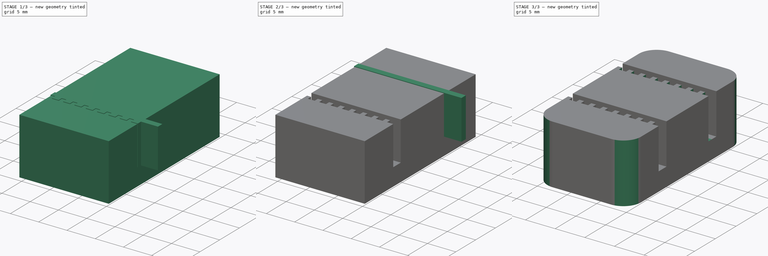
[diagram: build sequence overview — one tinted view per stage of 3, left to right]
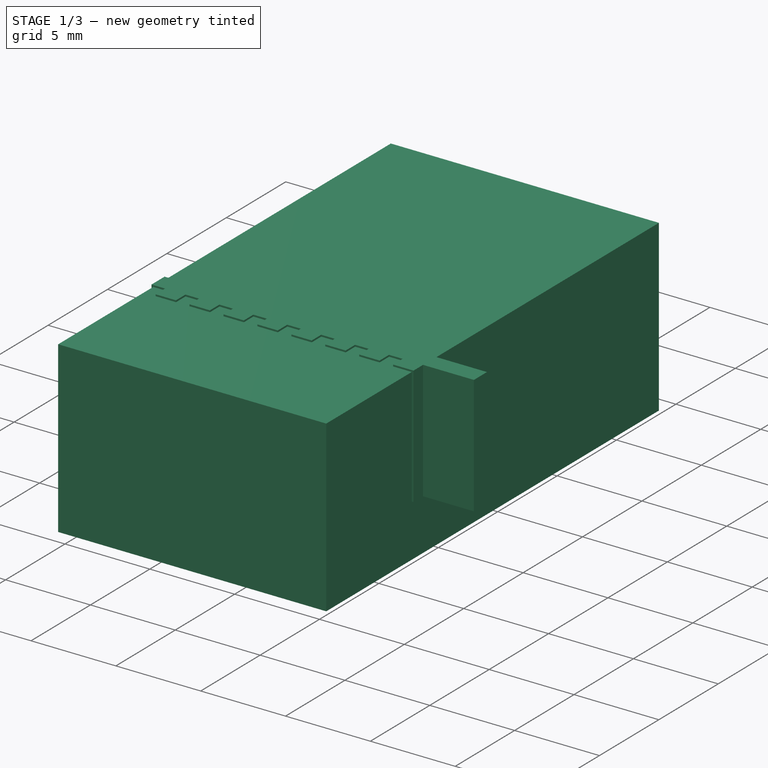
[diagram: stage 1 of 3 — iso view after this stage's code; geometry added in this stage tinted green]
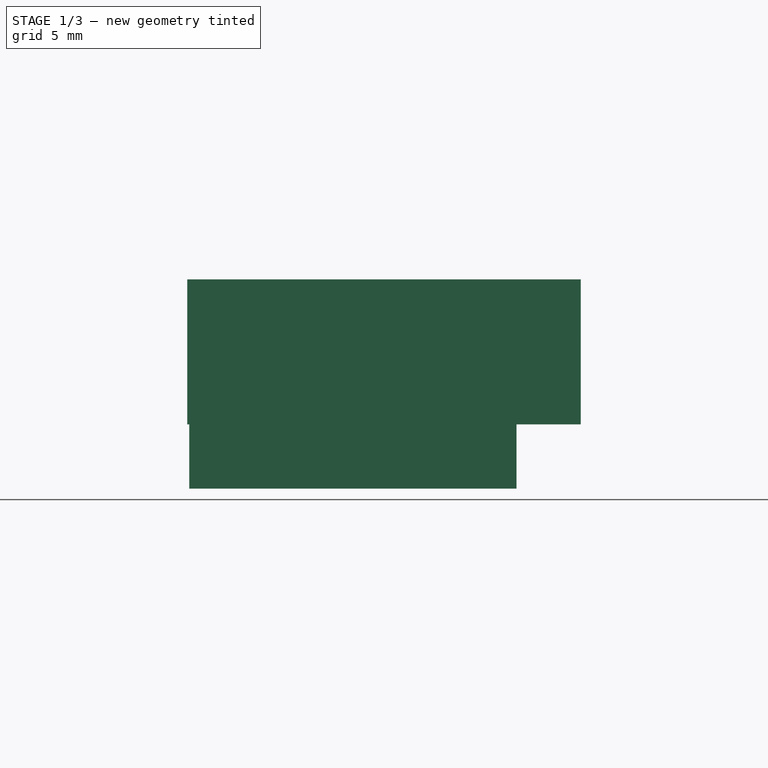
[diagram: stage 1 of 3 — front view after this stage's code; geometry added in this stage tinted green]
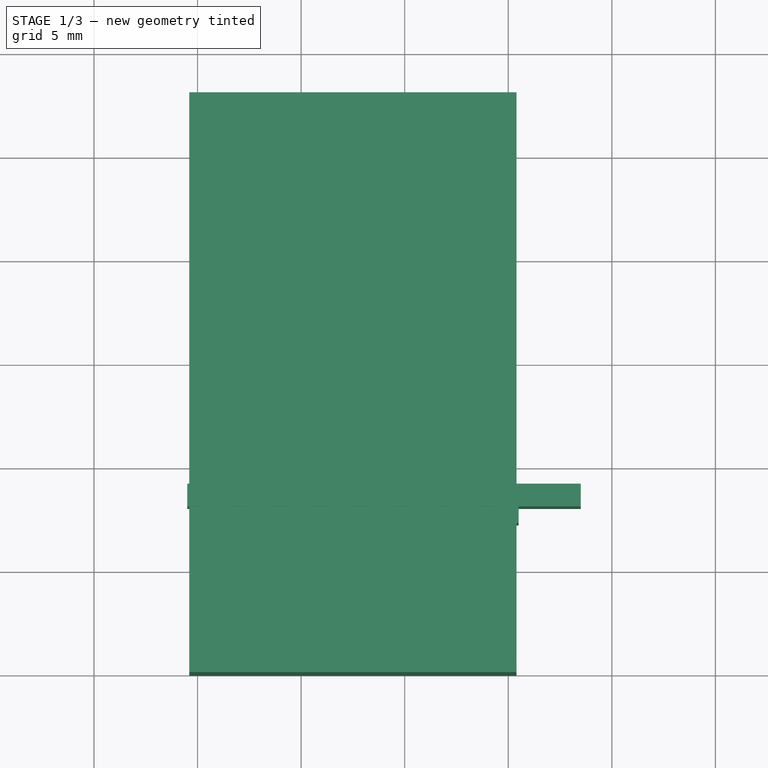
[diagram: stage 1 of 3 — top view after this stage's code; geometry added in this stage tinted green]
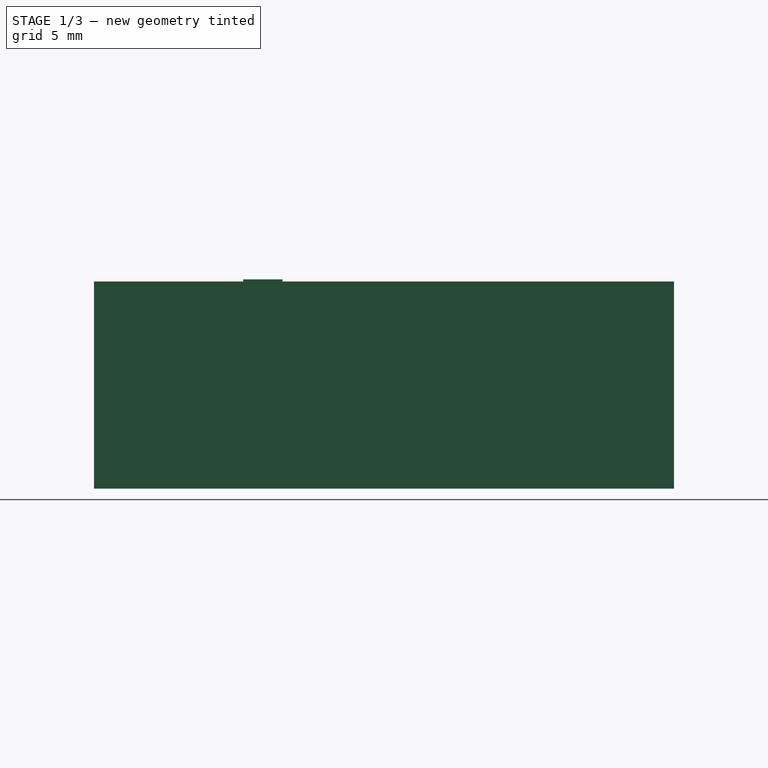
[diagram: stage 1 of 3 — right view after this stage's code; geometry added in this stage tinted green]
FCSTD DOCUMENT  (FreeCAD 0.16R6706 (Git))
Label: belt-blocks
License: All rights reserved
LicenseURL: http://en.wikipedia.org/wiki/All_rights_reserved
objects: Part::Box×3, Sketcher::SketchObject×2, PartDesign::Pad×2, Part::Cut×2, Part::Fillet×1
note: 12 computed .brp shape members not serialized (recipe doc carries the construction recipe); baked Part::Feature solids carry a one-line shape summary decoded from their .brp

FEATURE [Part::Box] Box001  label="Cube001"
  Height = 10
  Length = 15.8
  Placement = pos=(-0.4,0,0) rot=(0,0,1;0rad)
  Width = 28
FEATURE [Sketcher::SketchObject] Sketch015
  Placement = pos=(-0.5,20,3.1) rot=(1,0,0;1.5708rad)
  Support = -> Box [Face3]
  sketch-geometry (32):
    g0: LineSegment StartX=0.8 StartY=7 StartZ=0 EndX=2 EndY=7 EndZ=0
    g1: LineSegment StartX=2 StartY=7 StartZ=0 EndX=2 EndY=0 EndZ=0
    g2: LineSegment StartX=2 StartY=0 StartZ=0 EndX=0.8 EndY=0 EndZ=0
    g3: LineSegment StartX=0.8 StartY=0 StartZ=0 EndX=0.8 EndY=7 EndZ=0
    g4: LineSegment StartX=2.8 StartY=7 StartZ=0 EndX=4 EndY=7 EndZ=0
    g5: LineSegment StartX=4 StartY=7 StartZ=0 EndX=4 EndY=0 EndZ=0
    g6: LineSegment StartX=4 StartY=0 StartZ=0 EndX=2.8 EndY=0 EndZ=0
    g7: LineSegment StartX=2.8 StartY=0 StartZ=0 EndX=2.8 EndY=7 EndZ=0
    g8: LineSegment StartX=6 StartY=0 StartZ=0 EndX=4.8 EndY=0 EndZ=0
    g9: LineSegment StartX=4.8 StartY=0 StartZ=0 EndX=4.8 EndY=7 EndZ=0
    g10: LineSegment StartX=4.8 StartY=7 StartZ=0 EndX=6 EndY=7 EndZ=0
    g11: LineSegment StartX=6 StartY=7 StartZ=0 EndX=6 EndY=0 EndZ=0
    g12: LineSegment StartX=8 StartY=0 StartZ=0 EndX=6.8 EndY=0 EndZ=0
    g13: LineSegment StartX=6.8 StartY=0 StartZ=0 EndX=6.8 EndY=7 EndZ=0
    g14: LineSegment StartX=6.8 StartY=7 StartZ=0 EndX=8 EndY=7 EndZ=0
    g15: LineSegment StartX=8 StartY=7 StartZ=0 EndX=8 EndY=0 EndZ=0
    g16: LineSegment StartX=10 StartY=0 StartZ=0 EndX=8.8 EndY=0 EndZ=0
    g17: LineSegment StartX=8.8 StartY=0 StartZ=0 EndX=8.8 EndY=7 EndZ=0
    g18: LineSegment StartX=8.8 StartY=7 StartZ=0 EndX=10 EndY=7 EndZ=0
    g19: LineSegment StartX=10 StartY=7 StartZ=0 EndX=10 EndY=0 EndZ=0
    g20: LineSegment StartX=12 StartY=0 StartZ=0 EndX=10.8 EndY=0 EndZ=0
    g21: LineSegment StartX=10.8 StartY=0 StartZ=0 EndX=10.8 EndY=7 EndZ=0
    g22: LineSegment StartX=10.8 StartY=7 StartZ=0 EndX=12 EndY=7 EndZ=0
    g23: LineSegment StartX=12 StartY=7 StartZ=0 EndX=12 EndY=0 EndZ=0
    g24: LineSegment StartX=14 StartY=0 StartZ=0 EndX=12.8 EndY=0 EndZ=0
    g25: LineSegment StartX=12.8 StartY=0 StartZ=0 EndX=12.8 EndY=7 EndZ=0
    g26: LineSegment StartX=12.8 StartY=7 StartZ=0 EndX=14 EndY=7 EndZ=0
    g27: LineSegment StartX=14 StartY=7 StartZ=0 EndX=14 EndY=0 EndZ=0
    g28: LineSegment StartX=16 StartY=0 StartZ=0 EndX=14.8 EndY=0 EndZ=0
    g29: LineSegment StartX=14.8 StartY=0 StartZ=0 EndX=14.8 EndY=7 EndZ=0
    g30: LineSegment StartX=14.8 StartY=7 StartZ=0 EndX=16 EndY=7 EndZ=0
    g31: LineSegment StartX=16 StartY=7 StartZ=0 EndX=16 EndY=0 EndZ=0
  constraints (96):
    c: Coincident(g0,g1)
    c: Coincident(g1,g2)
    c: Coincident(g2,g3)
    c: Coincident(g3,g0)
    c: Horizontal(g0)
    c: Horizontal(g2)
    c: Vertical(g1)
    c: Vertical(g3)
    c: Coincident(g4,g5)
    c: Coincident(g5,g6)
    c: Coincident(g6,g7)
    c: Coincident(g7,g4)
    c: Horizontal(g4)
    c: Horizontal(g6)
    c: Vertical(g5)
    c: Vertical(g7)
    c: Coincident(g10,g11)
    c: Coincident(g11,g8)
    c: Coincident(g8,g9)
    c: Coincident(g9,g10)
    c: Horizontal(g10)
    c: Horizontal(g8)
    c: Vertical(g11)
    c: Vertical(g9)
    c: DistanceX(g0) = 0.8
    c: DistanceY(g2) = 0
    c: Distance(g0) = 1.2
    c: DistanceY(g6) = 0
    c: Distance(g4,g0) = 0.8
    c: Distance(g4,g9) = 0.8
    c: DistanceY(g8) = 0
    c: Coincident(g14,g15)
    c: Coincident(g15,g12)
    c: Coincident(g12,g13)
    c: Coincident(g13,g14)
    c: Horizontal(g14)
    c: Horizontal(g12)
    c: Vertical(g15)
    c: Vertical(g13)
    c: Distance(g10,g13) = 0.8
    c: DistanceY(g12) = 0
    c: Coincident(g18,g19)
    c: Coincident(g19,g16)
    c: Coincident(g16,g17)
    c: Coincident(g17,g18)
    c: Horizontal(g18)
    c: Horizontal(g16)
    c: Vertical(g19)
    c: Vertical(g17)
    c: Distance(g14,g17) = 0.8
    c: DistanceY(g16) = 0
    c: Coincident(g22,g23)
    c: Coincident(g23,g20)
    c: Coincident(g20,g21)
    c: Coincident(g21,g22)
    c: Horizontal(g22)
    c: Horizontal(g20)
    c: Vertical(g23)
    c: Vertical(g21)
    c: Coincident(g26,g27)
    c: Coincident(g27,g24)
    c: Coincident(g24,g25)
    c: Coincident(g25,g26)
    c: Horizontal(g26)
    c: Horizontal(g24)
    c: Vertical(g27)
    c: Vertical(g25)
    c: Coincident(g30,g31)
    c: Coincident(g31,g28)
    c: Coincident(g28,g29)
    c: Coincident(g29,g30)
    c: Horizontal(g30)
    c: Horizontal(g28)
    c: Vertical(g31)
    c: Vertical(g29)
    c: DistanceY(g20) = 0
    c: DistanceY(g24) = 0
    c: DistanceY(g28) = 0
    c: Distance(g3) = 7
    c: Equal(g0,g4)
    c: Equal(g4,g10)
    c: Equal(g10,g14)
    c: Equal(g14,g18)
    c: Equal(g18,g22)
    c: Equal(g22,g26)
    c: Equal(g26,g30)
    c: Distance(g18,g21) = 0.8
    c: Distance(g22,g25) = 0.8
    c: Distance(g26,g29) = 0.8
    c: Equal(g3,g7)
    c: Equal(g7,g9)
    c: Equal(g9,g13)
    c: Equal(g13,g17)
    c: Equal(g17,g21)
    c: Equal(g21,g25)
    c: Equal(g25,g29)
FEATURE [Part::Box] Box002  label="Cube002"
  Height = 7
  Length = 19
  Placement = pos=(-0.5,8,3.1) rot=(0,0,1;0rad)
  Width = 1.1
FEATURE [Sketcher::SketchObject] Sketch016
  Placement = pos=(-0.5,8,3.1) rot=(1,0,0;1.5708rad)
  Support = -> Box002 [Face3]
  sketch-geometry (32):
    g0: LineSegment StartX=0.8 StartY=7 StartZ=0 EndX=2 EndY=7 EndZ=0
    g1: LineSegment StartX=2 StartY=7 StartZ=0 EndX=2 EndY=0 EndZ=0
    g2: LineSegment StartX=2 StartY=0 StartZ=0 EndX=0.8 EndY=0 EndZ=0
    g3: LineSegment StartX=0.8 StartY=0 StartZ=0 EndX=0.8 EndY=7 EndZ=0
    g4: LineSegment StartX=2.8 StartY=7 StartZ=0 EndX=4 EndY=7 EndZ=0
    g5: LineSegment StartX=4 StartY=7 StartZ=0 EndX=4 EndY=0 EndZ=0
    g6: LineSegment StartX=4 StartY=0 StartZ=0 EndX=2.8 EndY=0 EndZ=0
    g7: LineSegment StartX=2.8 StartY=0 StartZ=0 EndX=2.8 EndY=7 EndZ=0
    g8: LineSegment StartX=6 StartY=0 StartZ=0 EndX=4.8 EndY=0 EndZ=0
    g9: LineSegment StartX=4.8 StartY=0 StartZ=0 EndX=4.8 EndY=7 EndZ=0
    g10: LineSegment StartX=4.8 StartY=7 StartZ=0 EndX=6 EndY=7 EndZ=0
    g11: LineSegment StartX=6 StartY=7 StartZ=0 EndX=6 EndY=0 EndZ=0
    g12: LineSegment StartX=8 StartY=0 StartZ=0 EndX=6.8 EndY=0 EndZ=0
    g13: LineSegment StartX=6.8 StartY=0 StartZ=0 EndX=6.8 EndY=7 EndZ=0
    g14: LineSegment StartX=6.8 StartY=7 StartZ=0 EndX=8 EndY=7 EndZ=0
    g15: LineSegment StartX=8 StartY=7 StartZ=0 EndX=8 EndY=0 EndZ=0
    g16: LineSegment StartX=10 StartY=0 StartZ=0 EndX=8.8 EndY=0 EndZ=0
    g17: LineSegment StartX=8.8 StartY=0 StartZ=0 EndX=8.8 EndY=7 EndZ=0
    g18: LineSegment StartX=8.8 StartY=7 StartZ=0 EndX=10 EndY=7 EndZ=0
    g19: LineSegment StartX=10 StartY=7 StartZ=0 EndX=10 EndY=0 EndZ=0
    g20: LineSegment StartX=10.8 StartY=0 StartZ=0 EndX=12 EndY=0 EndZ=0
    g21: LineSegment StartX=12 StartY=0 StartZ=0 EndX=12 EndY=7 EndZ=0
    g22: LineSegment StartX=12 StartY=7 StartZ=0 EndX=10.8 EndY=7 EndZ=0
    g23: LineSegment StartX=10.8 StartY=7 StartZ=0 EndX=10.8 EndY=0 EndZ=0
    g24: LineSegment StartX=12.8 StartY=0 StartZ=0 EndX=14 EndY=0 EndZ=0
    g25: LineSegment StartX=14 StartY=0 StartZ=0 EndX=14 EndY=7 EndZ=0
    g26: LineSegment StartX=14 StartY=7 StartZ=0 EndX=12.8 EndY=7 EndZ=0
    g27: LineSegment StartX=12.8 StartY=7 StartZ=0 EndX=12.8 EndY=0 EndZ=0
    g28: LineSegment StartX=14.8 StartY=0 StartZ=0 EndX=16 EndY=0 EndZ=0
    g29: LineSegment StartX=16 StartY=0 StartZ=0 EndX=16 EndY=7 EndZ=0
    g30: LineSegment StartX=16 StartY=7 StartZ=0 EndX=14.8 EndY=7 EndZ=0
    g31: LineSegment StartX=14.8 StartY=7 StartZ=0 EndX=14.8 EndY=0 EndZ=0
  constraints (95):
    c: Coincident(g0,g1)
    c: Coincident(g1,g2)
    c: Coincident(g2,g3)
    c: Coincident(g3,g0)
    c: Horizontal(g0)
    c: Horizontal(g2)
    c: Vertical(g1)
    c: Vertical(g3)
    c: Coincident(g4,g5)
    c: Coincident(g5,g6)
    c: Coincident(g6,g7)
    c: Coincident(g7,g4)
    c: Horizontal(g4)
    c: Horizontal(g6)
    c: Vertical(g5)
    c: Vertical(g7)
    c: Coincident(g10,g11)
    c: Coincident(g11,g8)
    c: Coincident(g8,g9)
    c: Coincident(g9,g10)
    c: Horizontal(g10)
    c: Horizontal(g8)
    c: Vertical(g11)
    c: Vertical(g9)
    c: DistanceX(g0) = 0.8
    c: DistanceY(g2) = 0
    c: Distance(g0) = 1.2
    c: DistanceY(g6) = 0
    c: Distance(g4,g0) = 0.8
    c: Distance(g4,g9) = 0.8
    c: DistanceY(g8) = 0
    c: Coincident(g14,g15)
    c: Coincident(g15,g12)
    c: Coincident(g12,g13)
    c: Coincident(g13,g14)
    c: Horizontal(g14)
    c: Horizontal(g12)
    c: Vertical(g15)
    c: Vertical(g13)
    c: Distance(g10,g13) = 0.8
    c: DistanceY(g12) = 0
    c: Coincident(g18,g19)
    c: Coincident(g19,g16)
    c: Coincident(g16,g17)
    c: Coincident(g17,g18)
    c: Horizontal(g18)
    c: Horizontal(g16)
    c: Vertical(g19)
    c: Vertical(g17)
    c: Distance(g14,g17) = 0.8
    c: DistanceY(g16) = 0
    c: Coincident(g22,g23)
    c: Coincident(g23,g20)
    c: Coincident(g20,g21)
    c: Coincident(g21,g22)
    c: Horizontal(g22)
    c: Horizontal(g20)
    c: Vertical(g23)
    c: Vertical(g21)
    c: Distance(g18,g22) = 0.8
    c: Coincident(g26,g27)
    c: Coincident(g27,g24)
    c: Coincident(g24,g25)
    c: Coincident(g25,g26)
    c: Horizontal(g26)
    c: Horizontal(g24)
    c: Vertical(g27)
    c: Vertical(g25)
    c: DistanceY(g24) = 0
    c: Coincident(g30,g31)
    c: Coincident(g31,g28)
    c: Coincident(g28,g29)
    c: Coincident(g29,g30)
    c: Horizontal(g30)
    c: Horizontal(g28)
    c: Vertical(g31)
    c: Vertical(g29)
    c: DistanceY(g28) = 0
    c: Distance(g3) = 7
    c: Equal(g3,g7)
    c: Equal(g7,g9)
    c: Equal(g9,g13)
    c: Equal(g13,g17)
    c: Equal(g17,g23)
    c: Equal(g23,g27)
    c: Equal(g27,g31)
    c: Equal(g0,g4)
    c: Equal(g4,g10)
    c: Equal(g10,g14)
    c: Equal(g14,g18)
    c: Equal(g18,g22)
    c: Equal(g22,g26)
    c: Equal(g26,g30)
    c: Distance(g21,g26) = 0.8
    c: Distance(g25,g30) = 0.8
FEATURE [PartDesign::Pad] Pad001
  Length = 0.8
  Length2 = 100
  Placement = pos=(-0.5,8,3.1) rot=(0,0,1;0rad)
  Sketch = -> Sketch016
  Type = 0
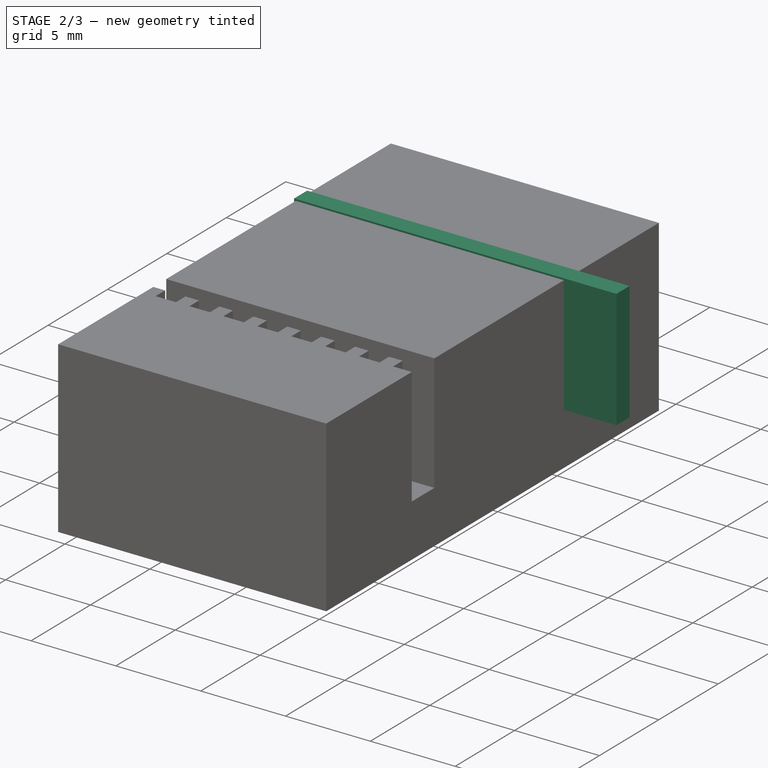
[diagram: stage 2 of 3 — iso view after this stage's code; geometry added in this stage tinted green]
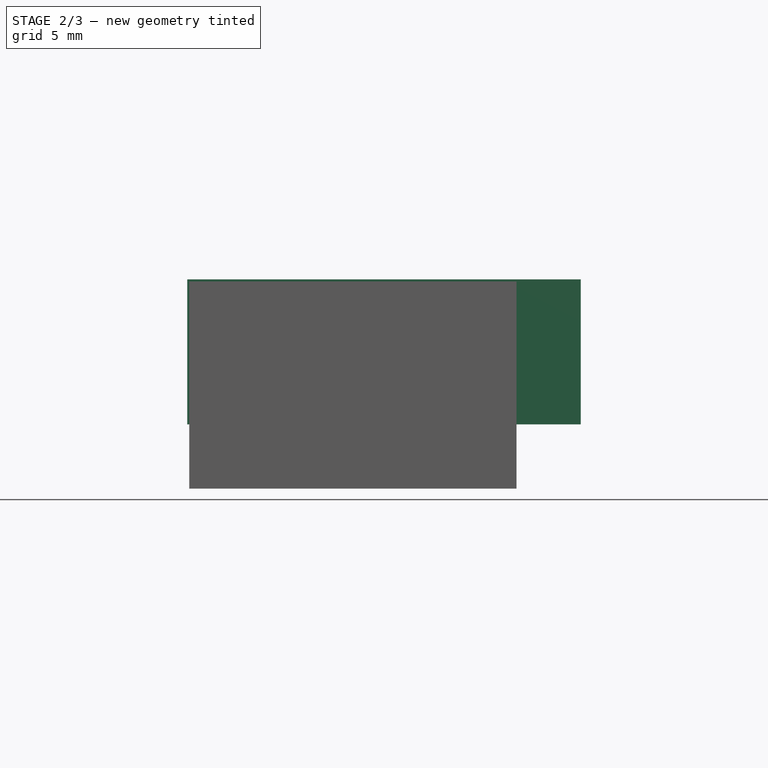
[diagram: stage 2 of 3 — front view after this stage's code; geometry added in this stage tinted green]
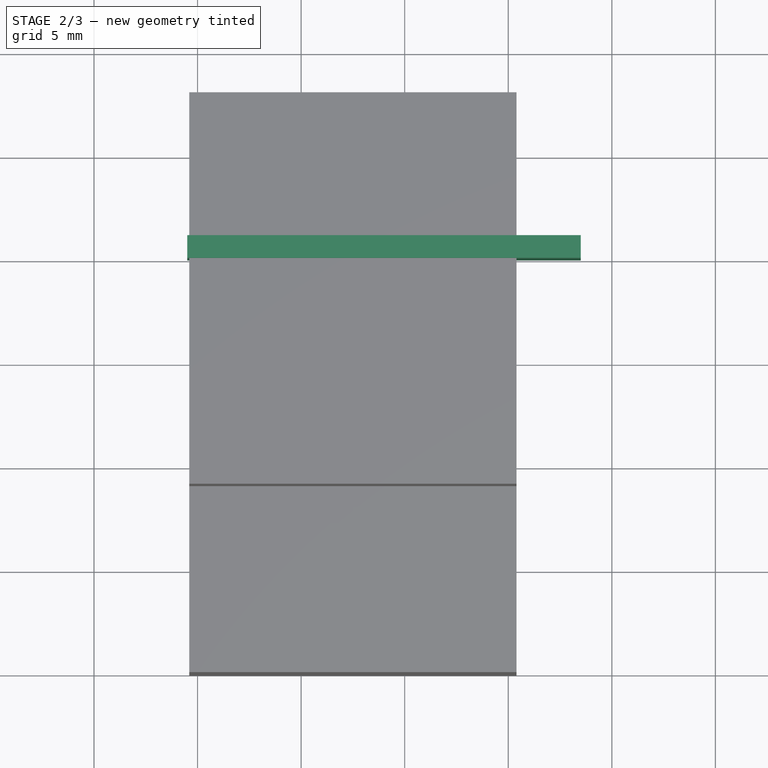
[diagram: stage 2 of 3 — top view after this stage's code; geometry added in this stage tinted green]
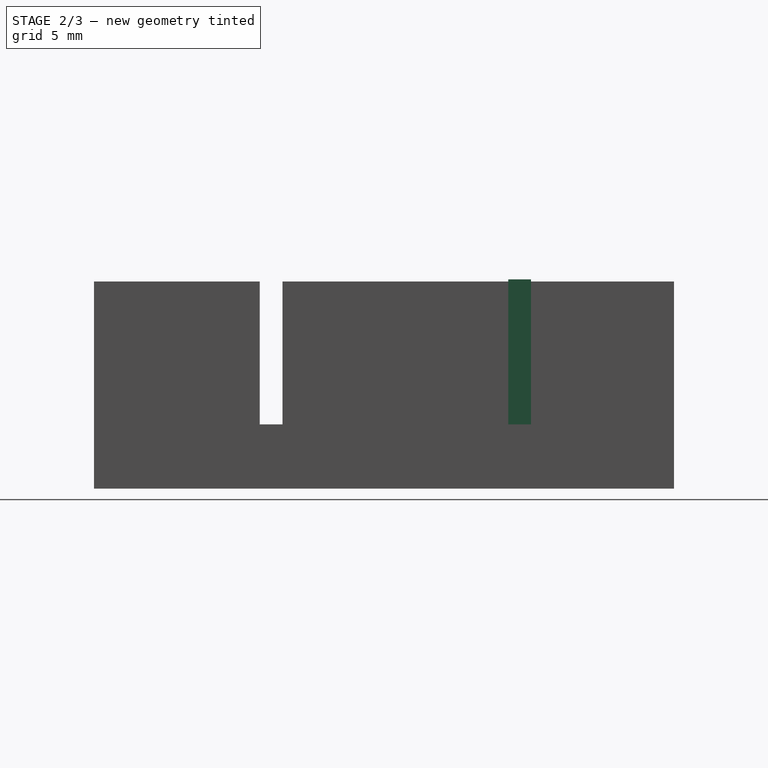
[diagram: stage 2 of 3 — right view after this stage's code; geometry added in this stage tinted green]
FEATURE [Part::Box] Box  label="Cube"
  Height = 7
  Length = 19
  Placement = pos=(-0.5,20,3.1) rot=(0,0,1;0rad)
  Width = 1.1
FEATURE [Part::Cut] Cut
  Base = -> Box001
  Tool = -> Pad001
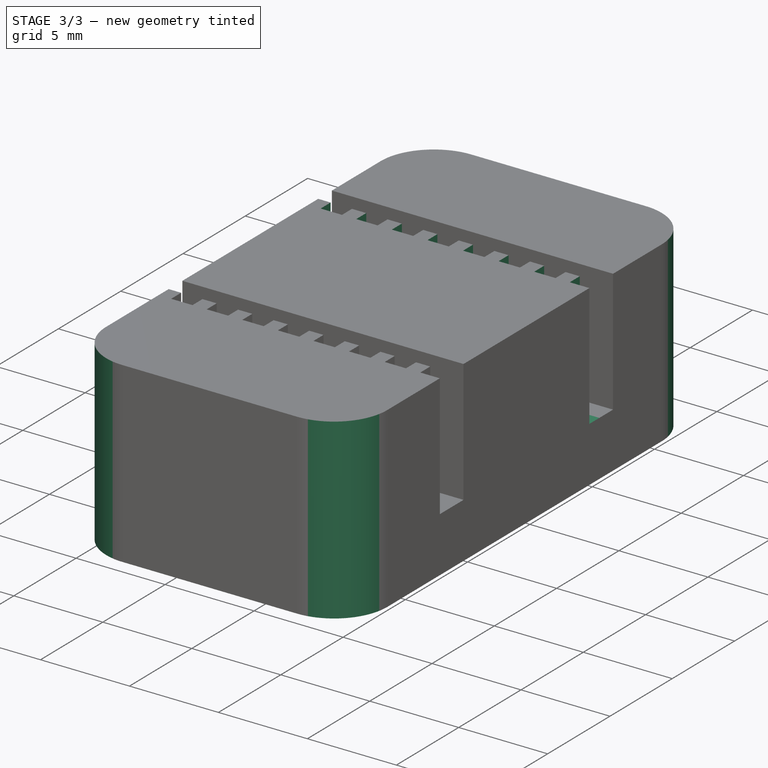
[diagram: stage 3 of 3 — iso view after this stage's code; geometry added in this stage tinted green]
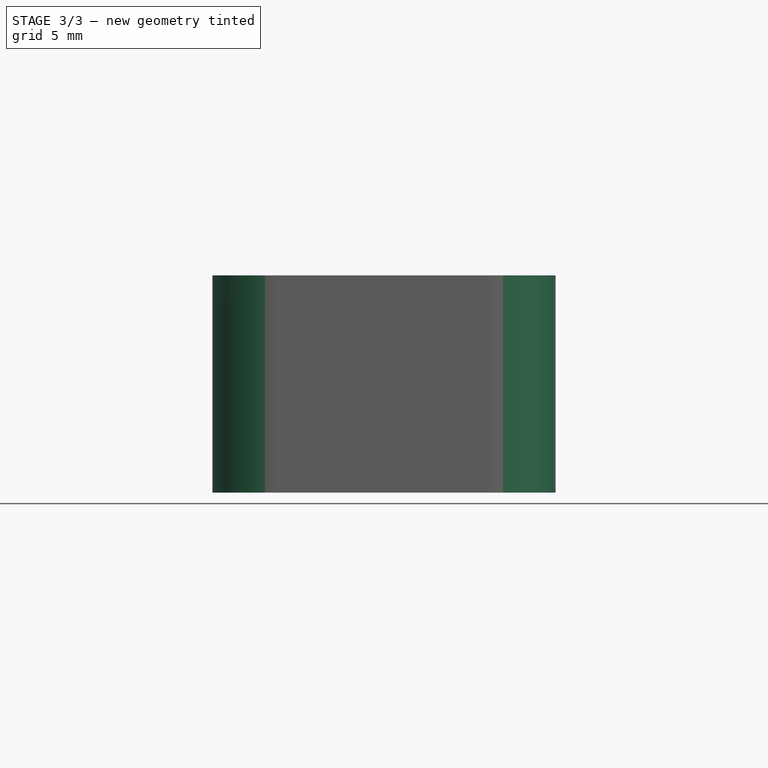
[diagram: stage 3 of 3 — front view after this stage's code; geometry added in this stage tinted green]
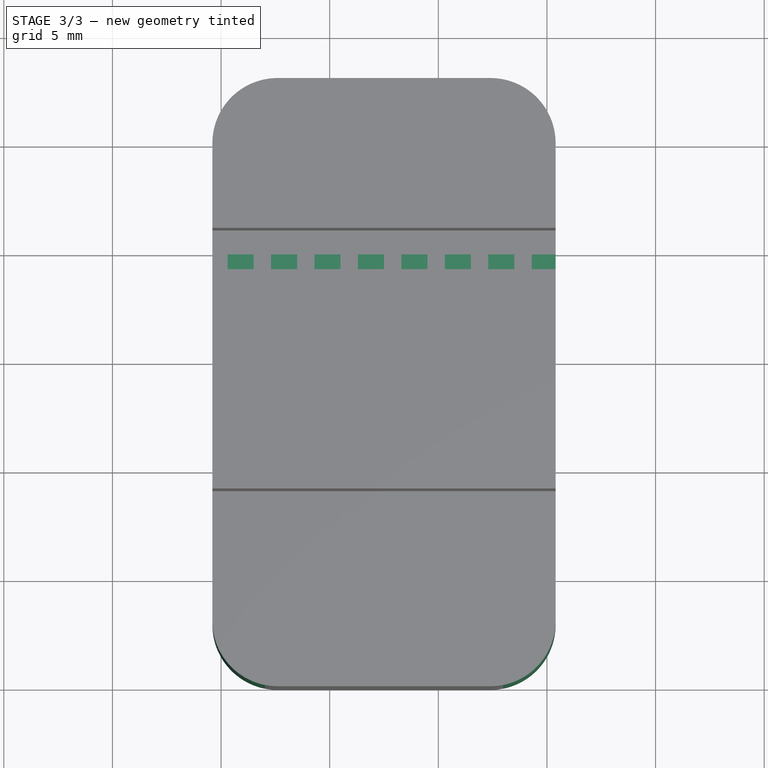
[diagram: stage 3 of 3 — top view after this stage's code; geometry added in this stage tinted green]
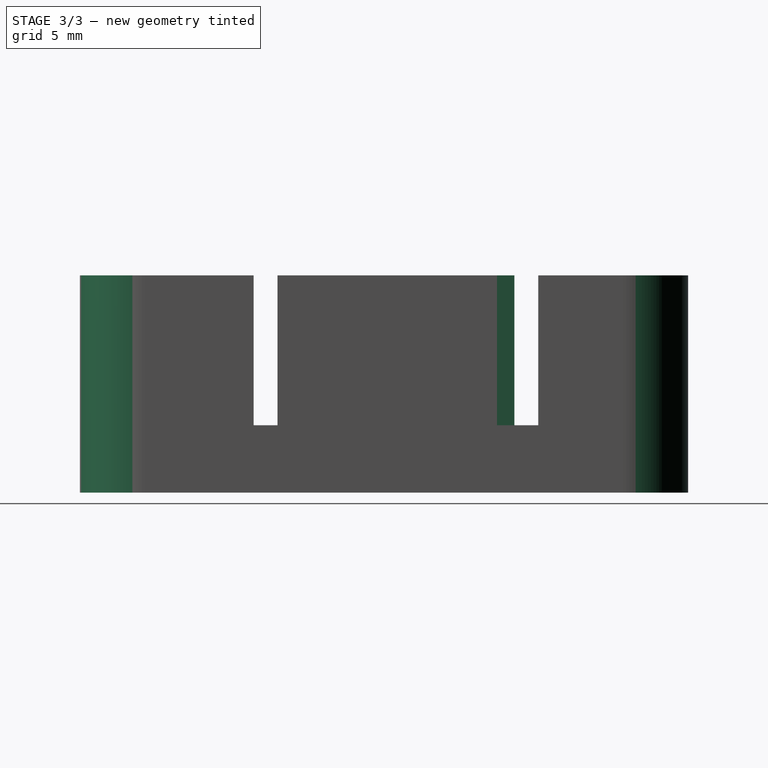
[diagram: stage 3 of 3 — right view after this stage's code; geometry added in this stage tinted green]
FEATURE [PartDesign::Pad] Pad
  Length = 0.8
  Length2 = 100
  Placement = pos=(-0.5,20,3.1) rot=(0,0,1;0rad)
  Sketch = -> Sketch015
  Type = 0
FEATURE [Part::Cut] Cut001
  Base = -> Cut
  Tool = -> Pad
FEATURE [Part::Fillet] Fillet
  Base = -> Cut001
  Edges = 4 edges r=3: [Edge10,Edge12,Edge123,Edge126]
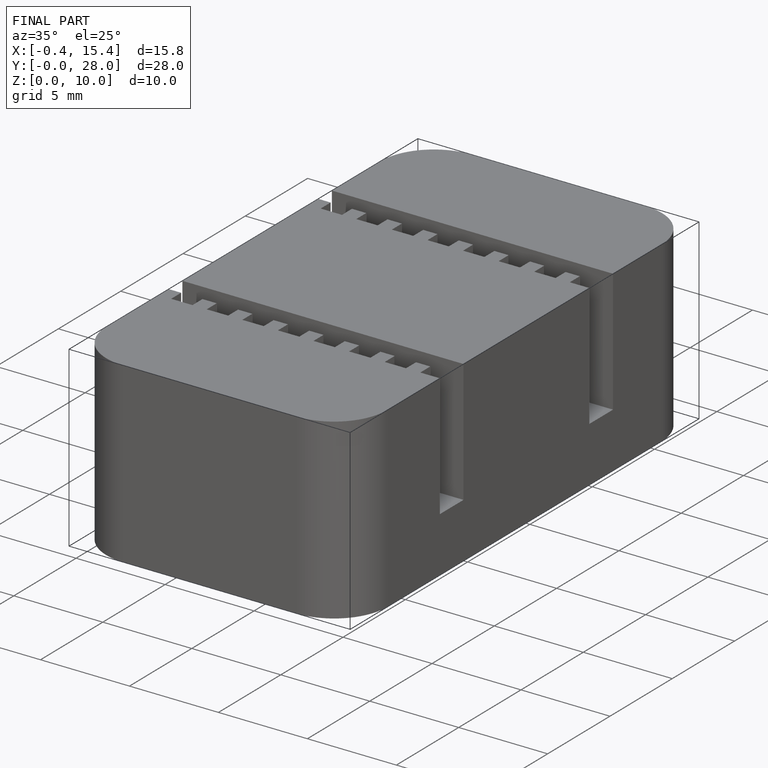
[diagram: finished part — iso view with bounding-box wireframe]
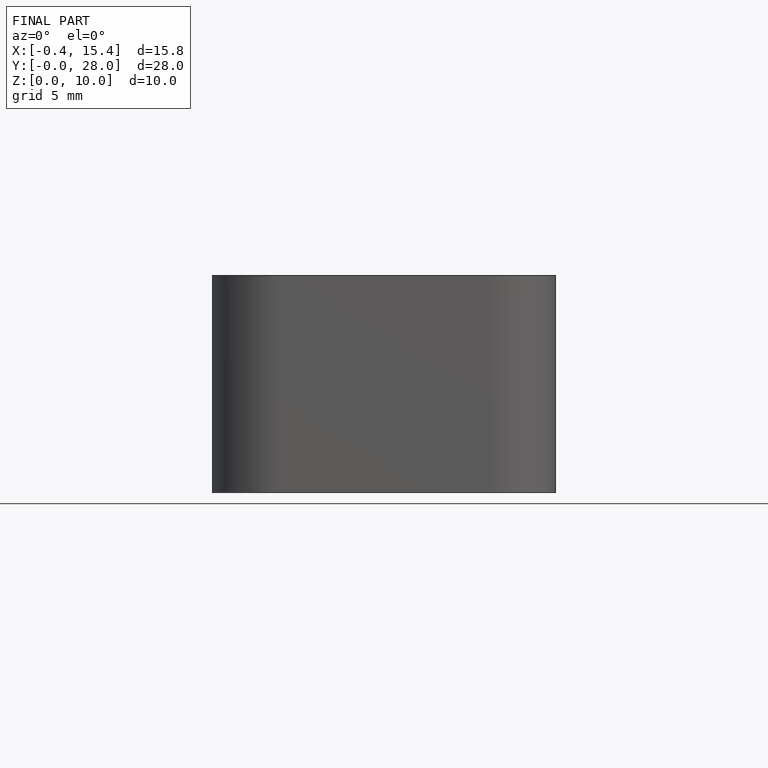
[diagram: finished part — front view with bounding-box wireframe]
